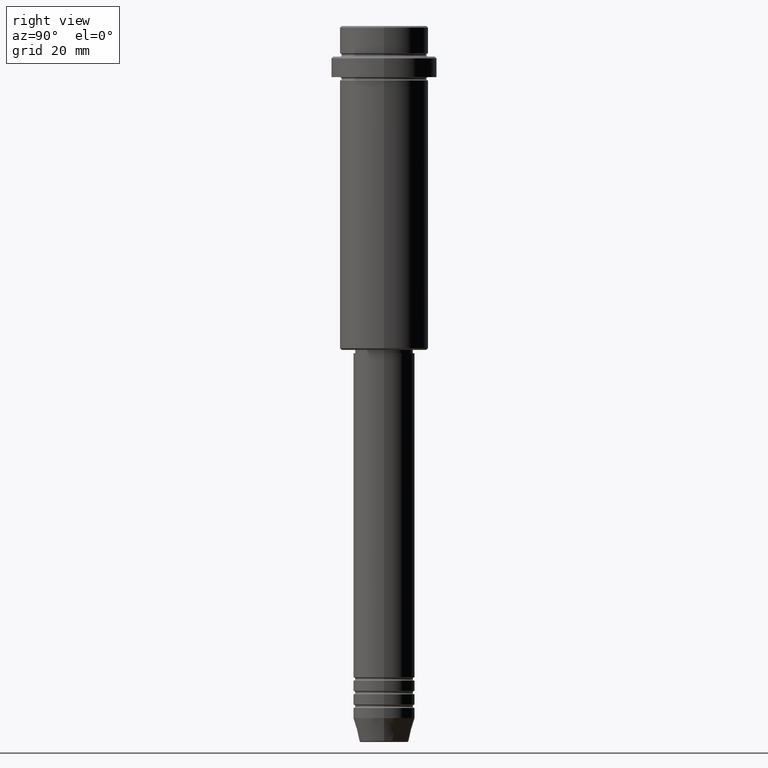
[diagram: clean part render]
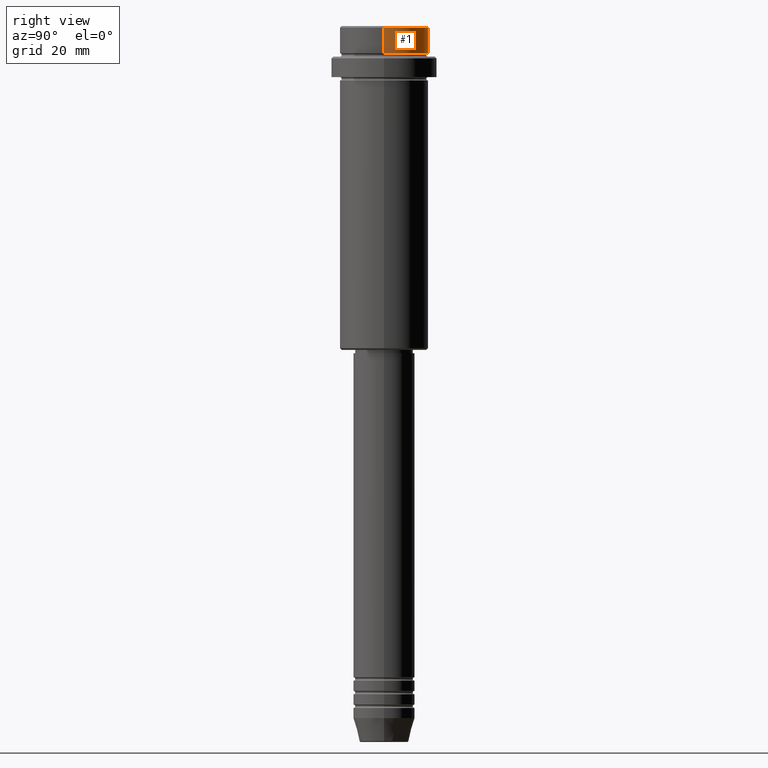
[diagram: same view with one face highlighted and labeled with its STEP entity id]
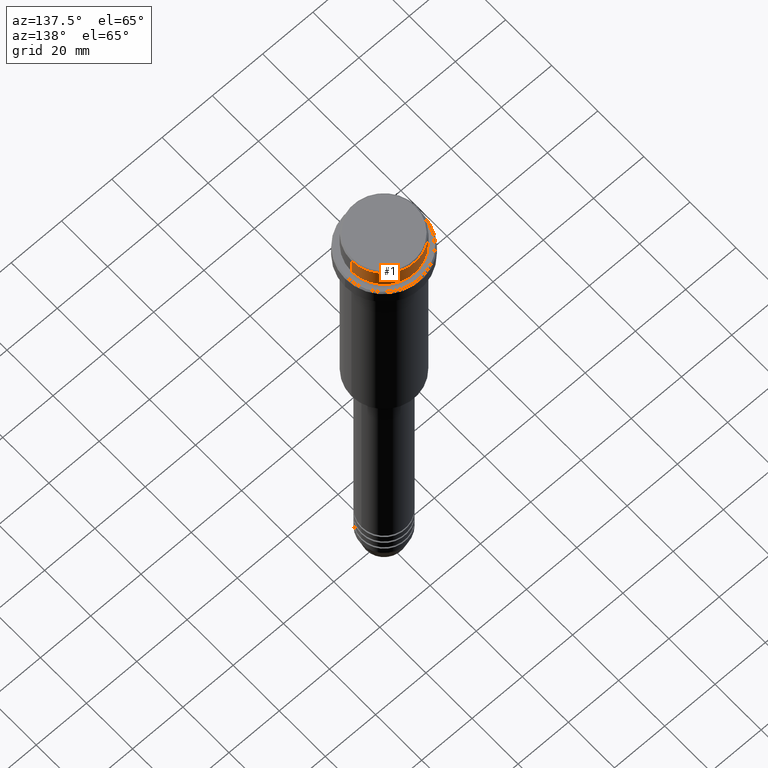
[diagram: same view with one face highlighted and labeled with its STEP entity id]
A machine part, right view. The second image highlights one B-rep face of the part: STEP entity #1.
A second angle (auxiliary view) of the same face is appended — the face is thin or edge-on in the first view.
In plain terms, the highlighted cylindrical surface (partial cylindrical patch) has radius 13 mm, axis along (-0, -0, 1).
Its self-contained STEP definition (entity closure, byte-faithful):
#1 = ADVANCED_FACE ( 'NONE', ( #615 ), #160, .T. ) ;
#72 = DIRECTION ( 'NONE',  ( 1.000000000000000000, 0.000000000000000000, 0.000000000000000000 ) ) ;
#74 = DIRECTION ( 'NONE',  ( 0.000000000000000000, 0.000000000000000000, -1.000000000000000000 ) ) ;
#89 = DIRECTION ( 'NONE',  ( -0.000000000000000000, -0.000000000000000000, 1.000000000000000000 ) ) ;
#145 = EDGE_CURVE ( 'NONE', #929, #159, #1107, .T. ) ;
#159 = VERTEX_POINT ( 'NONE', #525 ) ;
#160 = CYLINDRICAL_SURFACE ( 'NONE', #374, 12.99999999999999822 ) ;
#170 = VECTOR ( 'NONE', #859, 1000.000000000000000 ) ;
#173 = CARTESIAN_POINT ( 'NONE',  ( -12.99999999999999822, 1.592040838891558898E-15, 0.000000000000000000 ) ) ;
#200 = CARTESIAN_POINT ( 'NONE',  ( 12.99999999999999822, 0.000000000000000000, 0.000000000000000000 ) ) ;
#307 = ORIENTED_EDGE ( 'NONE', *, *, #910, .T. ) ;
#327 = ORIENTED_EDGE ( 'NONE', *, *, #145, .F. ) ;
#374 = AXIS2_PLACEMENT_3D ( 'NONE', #712, #1043, #72 ) ;
#388 = CARTESIAN_POINT ( 'NONE',  ( 12.99999999999999822, 0.000000000000000000, -7.999999999999998224 ) ) ;
#397 = EDGE_LOOP ( 'NONE', ( #1308, #456, #307, #327 ) ) ;
#450 = CARTESIAN_POINT ( 'NONE',  ( -12.99999999999999822, 1.592040838891558898E-15, -0.5000000000000316414 ) ) ;
#456 = ORIENTED_EDGE ( 'NONE', *, *, #488, .T. ) ;
#488 = EDGE_CURVE ( 'NONE', #1334, #1001, #1285, .T. ) ;
#525 = CARTESIAN_POINT ( 'NONE',  ( 12.99999999999999822, 0.000000000000000000, -0.5000000000000316414 ) ) ;
#574 = DIRECTION ( 'NONE',  ( -0.000000000000000000, -0.000000000000000000, 1.000000000000000000 ) ) ;
#579 = DIRECTION ( 'NONE',  ( 1.000000000000000000, 0.000000000000000000, 0.000000000000000000 ) ) ;
#606 = CIRCLE ( 'NONE', #1254, 12.99999999999999822 ) ;
#615 = FACE_OUTER_BOUND ( 'NONE', #397, .T. ) ;
#712 = CARTESIAN_POINT ( 'NONE',  ( 0.000000000000000000, 0.000000000000000000, 0.000000000000000000 ) ) ;
#730 = DIRECTION ( 'NONE',  ( 1.000000000000000000, 0.000000000000000000, 0.000000000000000000 ) ) ;
#733 = VECTOR ( 'NONE', #89, 1000.000000000000000 ) ;
#737 = EDGE_CURVE ( 'NONE', #929, #1334, #899, .T. ) ;
#859 = DIRECTION ( 'NONE',  ( -0.000000000000000000, -0.000000000000000000, 1.000000000000000000 ) ) ;
#899 = CIRCLE ( 'NONE', #1200, 12.99999999999999822 ) ;
#910 = EDGE_CURVE ( 'NONE', #1001, #159, #606, .T. ) ;
#929 = VERTEX_POINT ( 'NONE', #388 ) ;
#1001 = VERTEX_POINT ( 'NONE', #450 ) ;
#1039 = CARTESIAN_POINT ( 'NONE',  ( -12.99999999999999822, 1.592040838891558898E-15, -7.999999999999998224 ) ) ;
#1043 = DIRECTION ( 'NONE',  ( -0.000000000000000000, -0.000000000000000000, 1.000000000000000000 ) ) ;
#1051 = CARTESIAN_POINT ( 'NONE',  ( 0.000000000000000000, 0.000000000000000000, -0.5000000000000316414 ) ) ;
#1107 = LINE ( 'NONE', #200, #733 ) ;
#1200 = AXIS2_PLACEMENT_3D ( 'NONE', #1360, #574, #579 ) ;
#1254 = AXIS2_PLACEMENT_3D ( 'NONE', #1051, #74, #730 ) ;
#1285 = LINE ( 'NONE', #173, #170 ) ;
#1308 = ORIENTED_EDGE ( 'NONE', *, *, #737, .T. ) ;
#1334 = VERTEX_POINT ( 'NONE', #1039 ) ;
#1360 = CARTESIAN_POINT ( 'NONE',  ( 0.000000000000000000, 0.000000000000000000, -7.999999999999998224 ) ) ;